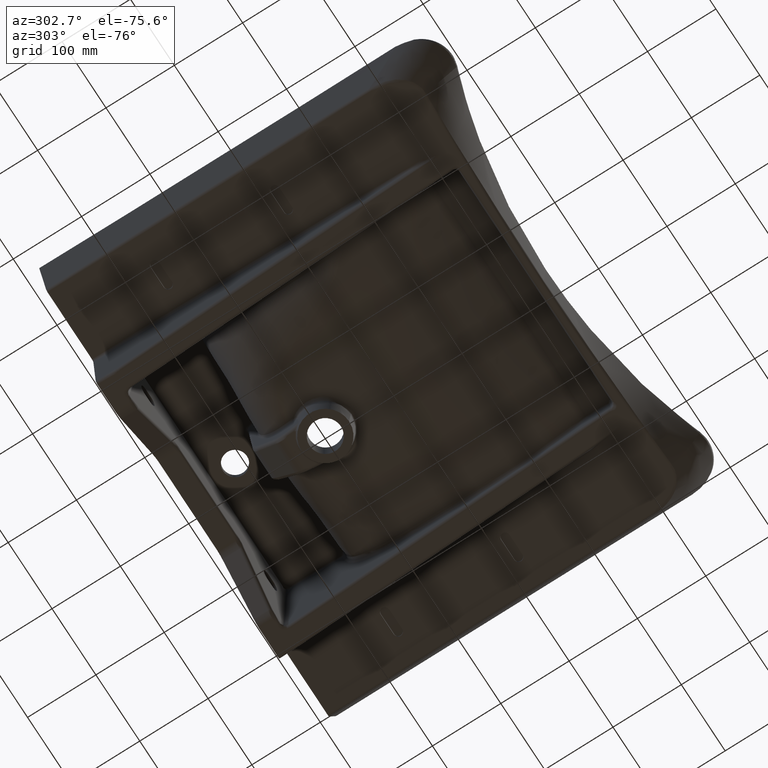
[diagram: clean part render]
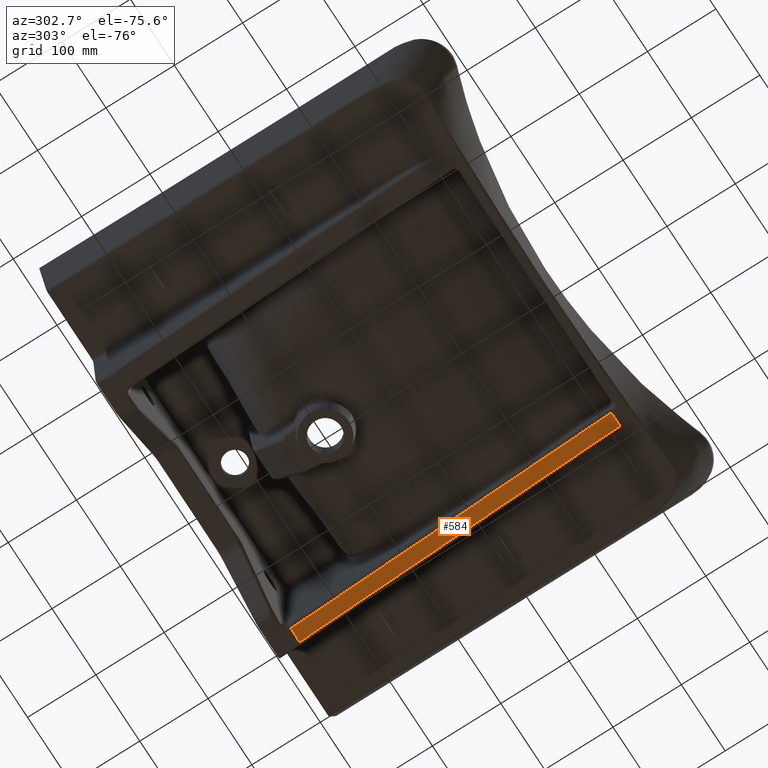
[diagram: same view with one face highlighted and labeled with its STEP entity id]
A machine part, auxiliary view. The second image highlights one B-rep face of the part: STEP entity #584.
In plain terms, the highlighted planar face has unit normal (0, 0.1755, 0.9845).
Its self-contained STEP definition (entity closure, byte-faithful):
#387=B_SPLINE_CURVE_WITH_KNOTS('',3,(#6967,#6968,#6969,#6970,#6971,#6972,
#6973,#6974,#6975,#6976,#6977,#6978,#6979),.UNSPECIFIED.,.F.,.F.,(4,3,3,
3,4),(0.,0.021023434366361,0.105117171831805,0.441492121693582,1.),
 .UNSPECIFIED.);
#388=B_SPLINE_CURVE_WITH_KNOTS('',3,(#6982,#6983,#6984,#6985),
 .UNSPECIFIED.,.F.,.F.,(4,4),(0.,1.),.UNSPECIFIED.);
#389=B_SPLINE_CURVE_WITH_KNOTS('',3,(#6989,#6990,#6991,#6992,#6993,#6994,
#6995,#6996,#6997,#6998,#6999,#7000,#7001),.UNSPECIFIED.,.F.,.F.,(4,3,3,
3,4),(0.,0.0210081953566521,0.10504097678326,0.441172102489694,1.),
 .UNSPECIFIED.);
#584=ADVANCED_FACE('',(#815),#771,.F.);
#771=PLANE('',#3288);
#815=FACE_OUTER_BOUND('',#1016,.T.);
#1016=EDGE_LOOP('',(#1473,#1474,#1475,#1476,#1477));
#1473=ORIENTED_EDGE('',*,*,#2703,.T.);
#1474=ORIENTED_EDGE('',*,*,#2704,.T.);
#1475=ORIENTED_EDGE('',*,*,#2705,.T.);
#1476=ORIENTED_EDGE('',*,*,#2706,.T.);
#1477=ORIENTED_EDGE('',*,*,#2707,.T.);
#2398=VERTEX_POINT('',#6980);
#2399=VERTEX_POINT('',#6981);
#2400=VERTEX_POINT('',#6986);
#2401=VERTEX_POINT('',#6988);
#2402=VERTEX_POINT('',#7002);
#2703=EDGE_CURVE('',#2398,#2399,#387,.T.);
#2704=EDGE_CURVE('',#2399,#2400,#388,.T.);
#2705=EDGE_CURVE('',#2400,#2401,#3098,.T.);
#2706=EDGE_CURVE('',#2401,#2402,#389,.T.);
#2707=EDGE_CURVE('',#2402,#2398,#3099,.T.);
#3098=LINE('',#6987,#3204);
#3099=LINE('',#7003,#3205);
#3204=VECTOR('',#3560,1.);
#3205=VECTOR('',#3561,1.);
#3288=AXIS2_PLACEMENT_3D('',#7004,#3562,#3563);
#3560=DIRECTION('',(1.,-8.22237401129186E-015,1.4661242077996E-015));
#3561=DIRECTION('',(-0.999999999999944,-3.29700490153759E-007,5.87886015977853E-008));
#3562=DIRECTION('',(0.,0.175540369669529,0.984472233542564));
#3563=DIRECTION('',(0.,-0.984472233542564,0.175540369669529));
#6967=CARTESIAN_POINT('',(184.504652766992,-299.908364910298,54.7367940264828));
#6968=CARTESIAN_POINT('',(184.502614707591,-296.626791411868,54.1516595702887));
#6969=CARTESIAN_POINT('',(184.50057664819,-293.345217913438,53.5665251140945));
#6970=CARTESIAN_POINT('',(184.498538588789,-290.063644415007,52.9813906579004));
#6971=CARTESIAN_POINT('',(184.490386351185,-276.937350421287,50.6408528331238));
#6972=CARTESIAN_POINT('',(184.482234113581,-263.811056427566,48.3003150083472));
#6973=CARTESIAN_POINT('',(184.474081875977,-250.684762433845,45.9597771835706));
#6974=CARTESIAN_POINT('',(184.44147292556,-198.179586458962,36.5976258844643));
#6975=CARTESIAN_POINT('',(184.408863975143,-145.674410484079,27.235474585358));
#6976=CARTESIAN_POINT('',(184.376255024727,-93.1692345091959,17.8733232862517));
#6977=CARTESIAN_POINT('',(184.322112004509,-5.991058946815,2.32866022321387));
#6978=CARTESIAN_POINT('',(184.267968984292,81.1871166155658,-13.2160028398239));
#6979=CARTESIAN_POINT('',(184.213825964075,168.365292177947,-28.7606659028617));
#6980=CARTESIAN_POINT('',(184.504652766992,-299.908364910298,54.7367940264828));
#6981=CARTESIAN_POINT('',(184.213825964075,168.365292177947,-28.7606659028617));
#6982=CARTESIAN_POINT('',(184.213825964075,168.365292177947,-28.7606659028617));
#6983=CARTESIAN_POINT('',(184.213755620122,168.478556222587,-28.7808619140736));
#6984=CARTESIAN_POINT('',(184.212124322154,168.591829778563,-28.8010596212432));
#6985=CARTESIAN_POINT('',(184.208930611803,168.705050196857,-28.8212478534801));
#6986=CARTESIAN_POINT('',(184.208930611803,168.705050196857,-28.8212478534801));
#6987=CARTESIAN_POINT('',(218.952403069446,168.705050196856,-28.8212478534801));
#6988=CARTESIAN_POINT('',(204.296732722374,168.705050196857,-28.8212478534801));
#6989=CARTESIAN_POINT('',(204.296732722374,168.705050196857,-28.8212478534801));
#6990=CARTESIAN_POINT('',(204.297558387013,165.423476185719,-28.2361133058654));
#6991=CARTESIAN_POINT('',(204.298384051652,162.14190217458,-27.6509787582508));
#6992=CARTESIAN_POINT('',(204.299209716291,158.860328163442,-27.0658442106362));
#6993=CARTESIAN_POINT('',(204.302512374848,145.73403211889,-24.7253060201777));
#6994=CARTESIAN_POINT('',(204.305815033404,132.607736074338,-22.3847678297191));
#6995=CARTESIAN_POINT('',(204.309117691961,119.481440029786,-20.0442296392606));
#6996=CARTESIAN_POINT('',(204.322328326187,66.9762558515763,-10.6820768774265));
#6997=CARTESIAN_POINT('',(204.335538960413,14.4710716733671,-1.31992411559233));
#6998=CARTESIAN_POINT('',(204.348749594639,-38.0341125048421,8.04222864624179));
#6999=CARTESIAN_POINT('',(204.370712663171,-125.325527785217,23.6070833828287));
#7000=CARTESIAN_POINT('',(204.392675731702,-212.616943065591,39.1719381194156));
#7001=CARTESIAN_POINT('',(204.414638800234,-299.908358345966,54.7367928560026));
#7002=CARTESIAN_POINT('',(204.414638800234,-299.908358345966,54.7367928560026));
#7003=CARTESIAN_POINT('',(218.952565132211,-299.908353552804,54.7367920013382));
#7004=CARTESIAN_POINT('',(218.952403069447,176.490373930521,-30.2094420144131));